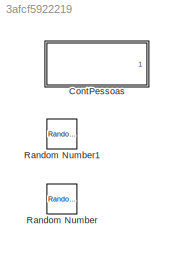
MODEL slx_3afcf5922219
KIND model
CONFIG AbsTol = auto
CONFIG EnableMultiTasking = off
CONFIG FixedStep = auto
CONFIG MaxStep = auto
CONFIG MinStep = auto
CONFIG RelTol = 1e-3
CONFIG SampleTimeConstraint = Unconstrained
CONFIG Solver = VariableStepAuto
CONFIG SolverName = VariableStepAuto
CONFIG StartTime = 0.0
CONFIG StopTime = 10.0
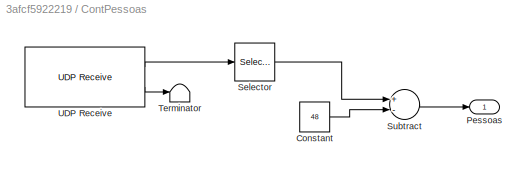
BLOCK [SubSystem] ContPessoas
  Ports = [0, 1]
  RequestExecContextInheritance = off
  Variant = off
BLOCK [Constant] ContPessoas/Constant
  Value = 48
BLOCK [Outport] ContPessoas/Pessoas 
  IconDisplay = Port number
BLOCK [Selector] ContPessoas/Selector
  IndexOptions = Starting index (dialog)
  Indices = [1]
  InputPortWidth = 255
  OutputSizes = 1
  Ports = [1, 1]
BLOCK [Sum] ContPessoas/Subtract
  InputSameDT = off
  Inputs = +-
  OutDataTypeStr = Inherit: Inherit via internal rule
  Ports = [2, 1]
  SaturateOnIntegerOverflow = off
BLOCK [Terminator] ContPessoas/Terminator
BLOCK [Reference] ContPessoas/UDP Receive  REF=embdlinuxlib/UDP Receive
  Ports = [0, 2]
  SourceBlock = embdlinuxlib/UDP Receive
  SourceProductBaseCode = RASPPI
  SourceProductName = Simulink Support Package for Raspberry Pi Hardware
  SourceType = UDP Receive
BLOCK [RandomNumber] Random Number
  SampleTime = 0.1
  Seed = 23
  Variance = 2.5
BLOCK [RandomNumber] Random Number1
  SampleTime = 0.1
  Seed = 28
  Variance = 2.5
LINE ContPessoas/Constant:1 -> ContPessoas/Subtract:2
LINE ContPessoas/Selector:1 -> ContPessoas/Subtract:1
LINE ContPessoas/Subtract:1 -> ContPessoas/Pessoas :1
LINE ContPessoas/UDP Receive:1 -> ContPessoas/Selector:1
LINE ContPessoas/UDP Receive:2 -> ContPessoas/Terminator:1
